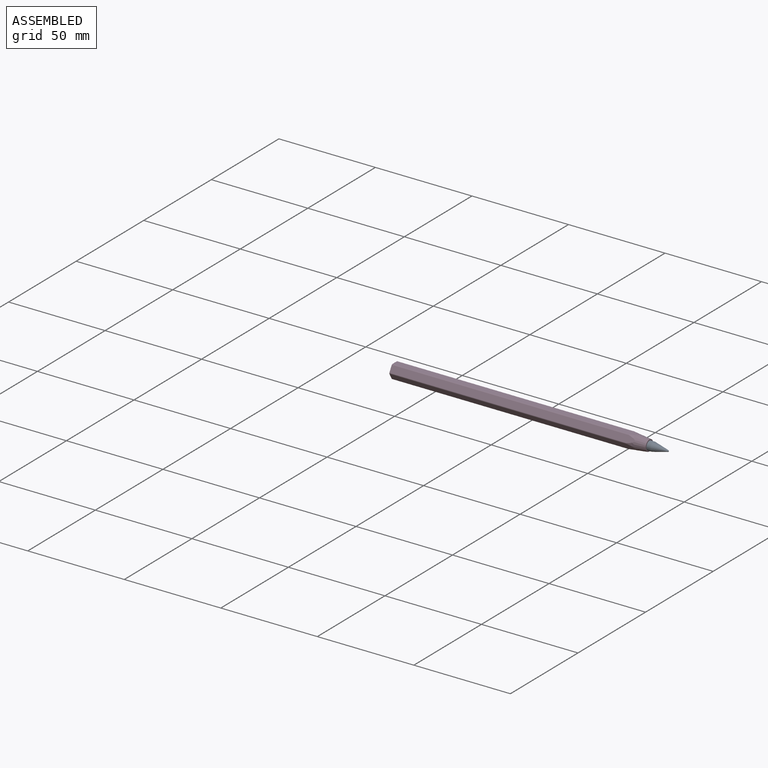
[diagram: assembled view]
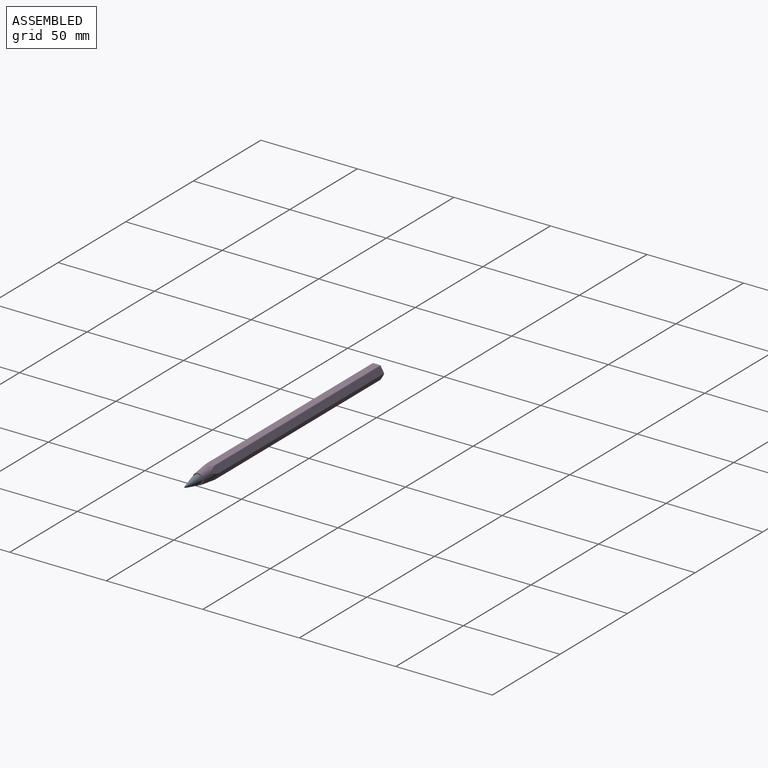
[diagram: assembled view, second angle]
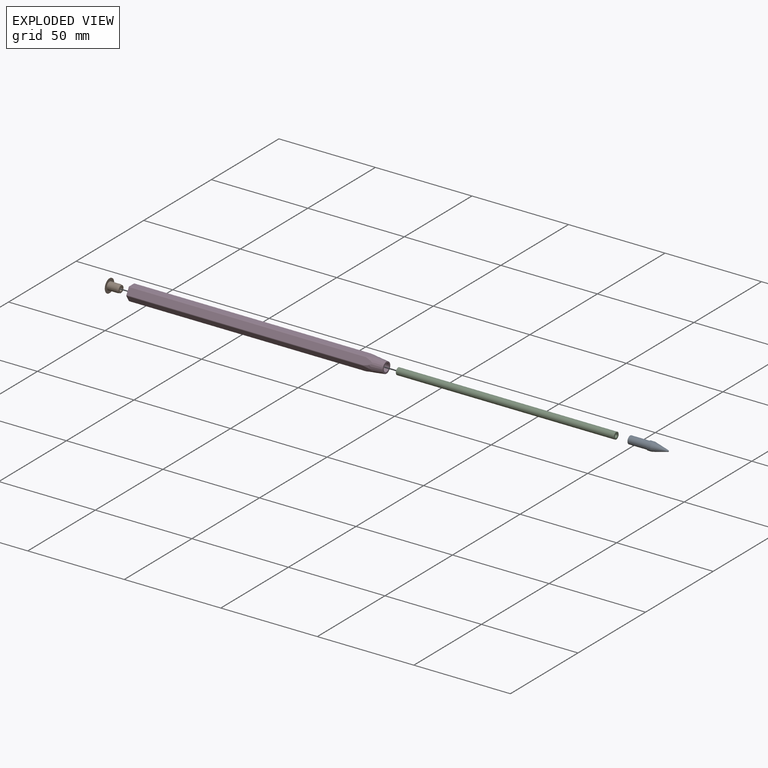
[diagram: exploded view]
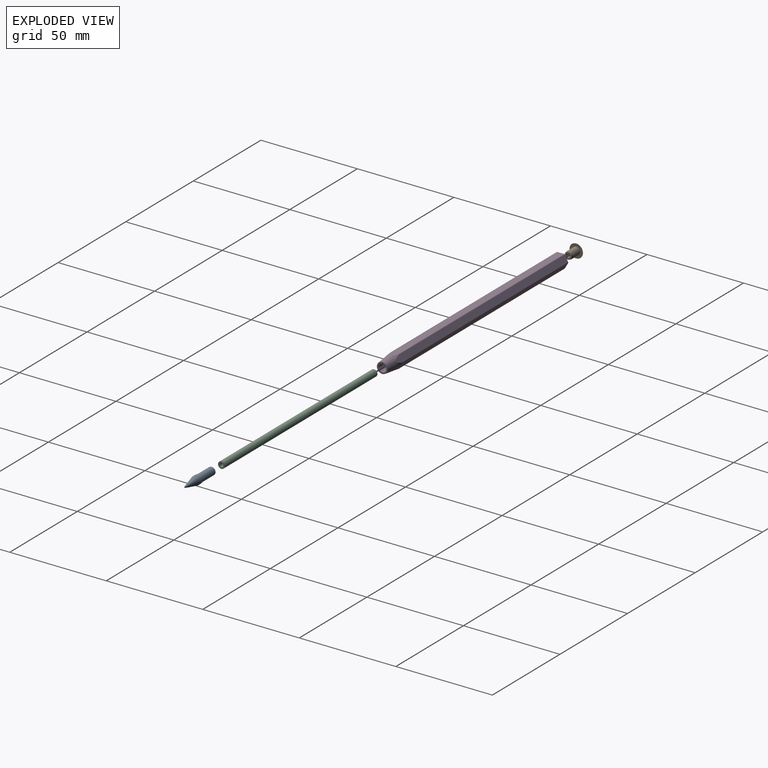
[diagram: exploded view, second angle]
ASSEMBLY  parts=4 mates=3
PART A: 6 faces, bbox 20x4.5x4.5 mm
  f0: plane 4x4mm, normal (-1,0,0), area 12.6mm2, adj f5
  f1: sphere r=0.4mm, area 0.8mm2, adj f2
  f2: cone r=2.25mm half-angle=13.6deg, axis (-1,0,0), area 65.6mm2, adj f1,f3
  f3: cylinder r=2.25mm len=4.5mm, axis (-1,0,0), area 28.3mm2, adj f2,f4
  f4: plane 4.5x4.5mm, normal (-1,0,0), area 3.3mm2, adj f3,f5
  f5: cylinder r=2mm len=10mm, axis (-1,0,0), area 125.7mm2, adj f0,f4
PART B: 7 faces, bbox 7x7x7 mm
  f0: sphere r=6.62mm, area 41.6mm2, adj f6
  f1: plane 2x2mm, normal (1,0,0), area 3.1mm2, adj f2
  f2: cylinder r=1mm len=6mm, axis (1,0,0), area 37.7mm2, adj f1,f3
  f3: plane 3.58x3.58mm, normal (1,0,0), area 6.9mm2, adj f2,f4
  f4: cone r=2mm half-angle=12deg, axis (-1,0,0), area 12.2mm2, adj f3,f5
  f5: cylinder r=2mm len=5mm, axis (1,0,0), area 62.8mm2, adj f4,f6
  f6: plane 7x7mm, normal (1,0,0), area 25.9mm2, adj f0,f5
PART C: 4 faces, bbox 113x3.5x3.5 mm
  f0: cylinder r=1.75mm len=113mm, axis (1,0,0), area 1242.5mm2, adj f1,f3
  f1: plane 3.5x3.5mm, normal (-1,0,0), area 6.5mm2, adj f0,f2
  f2: cylinder r=1mm len=113mm, axis (1,0,0), area 710mm2, adj f1,f3
  f3: plane 3.5x3.5mm, normal (1,0,0), area 6.5mm2, adj f0,f2
PART D: 16 faces, bbox 132x7.8x7.8 mm
  f0: plane 7.85x6.93mm, normal (-1,0,0), area 28.9mm2, adj f1,f4,f5,f6,f7,f8,f9,f10
  f1: cylinder r=2mm len=132mm, axis (-1,0,0), area 1658.8mm2, adj f0,f2
  f2: plane 5.6x5.6mm, normal (1,0,0), area 12.1mm2, adj f1,f3
  f3: cone r=2.8mm half-angle=6.8deg, axis (-1,0,0), area 141.5mm2, adj f2,f4,f5,f6,f7,f8,f9,f10
  f4: plane 126.47x3.43mm, normal (0,0,-1), area 429mm2, adj f0,f3,f10,f15
  f5: plane 126.47x2.97mm, normal (0,-0.87,-0.5), area 429mm2, adj f0,f3,f10,f11
  f6: plane 126.47x2.97mm, normal (0,-0.87,0.5), area 429mm2, adj f0,f3,f11,f12
  f7: plane 126.47x3.42mm, normal (0,0,1), area 429mm2, adj f0,f3,f12,f13
  f8: plane 126.47x2.97mm, normal (0,0.87,0.5), area 429mm2, adj f0,f3,f13,f14
  f9: plane 126.47x2.97mm, normal (0,0.87,-0.5), area 429mm2, adj f0,f3,f14,f15
  f10: cylinder r=0.5mm len=123.14mm, axis (-1,0,0), area 64.3mm2, adj f0,f3,f4,f5
  f11: cylinder r=0.5mm len=123.14mm, axis (-1,0,0), area 64.3mm2, adj f0,f3,f5,f6
  f12: cylinder r=0.5mm len=123.14mm, axis (-1,0,0), area 64.3mm2, adj f0,f3,f6,f7
  f13: cylinder r=0.5mm len=123.14mm, axis (-1,0,0), area 64.3mm2, adj f0,f3,f7,f8
  f14: cylinder r=0.5mm len=123.14mm, axis (-1,0,0), area 64.3mm2, adj f0,f3,f8,f9
  f15: cylinder r=0.5mm len=123.14mm, axis (-1,0,0), area 64.3mm2, adj f0,f3,f4,f9
PLACE A t=(122,0,0)mm
PLACE B t=(-1,0,0)mm
PLACE C t=(9,0,0)mm
PLACE D at identity fixed
MATE fastened B.f2 <-> D.f1  axis (1,0,0) through (0,0,0)mm
MATE fastened D.f1 <-> A.f2  axis (1,0,0) through (132,0,0)mm
MATE fastened C.f0 <-> A.f2  axis (1,0,0) through (122,0,0)mm
